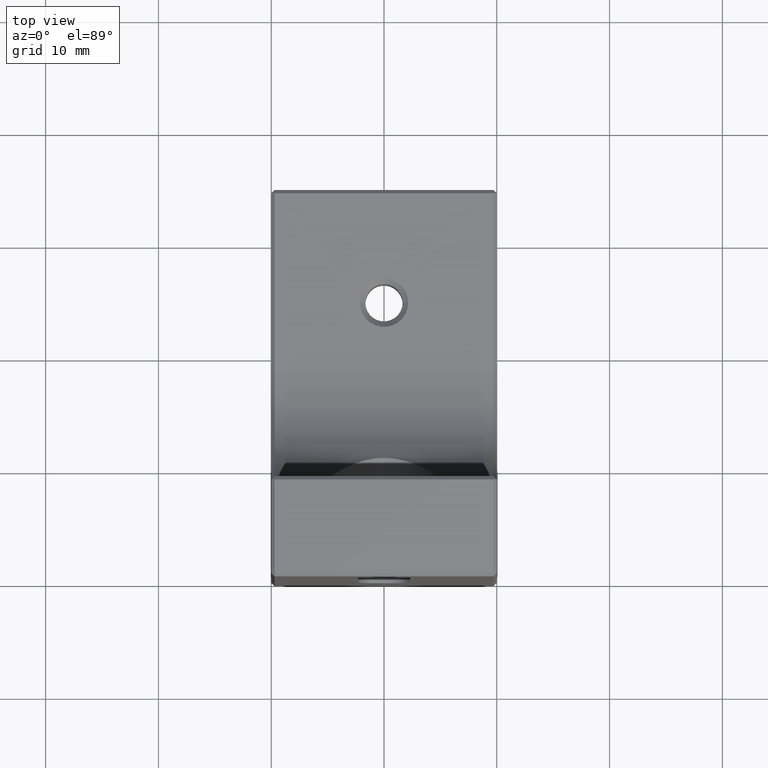
[diagram: clean part render]
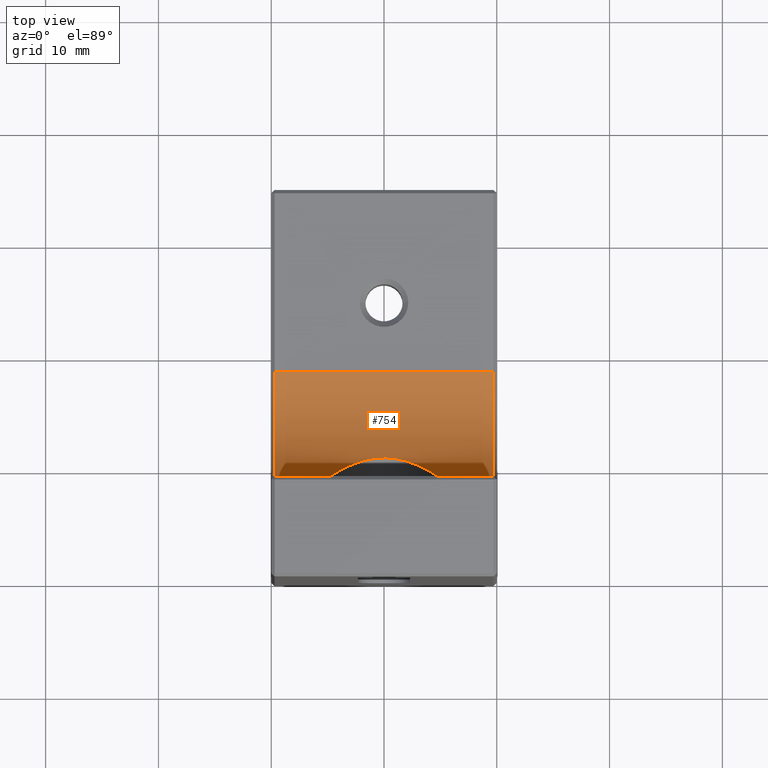
[diagram: same view with one face highlighted and labeled with its STEP entity id]
A machine part, top view. The second image highlights one B-rep face of the part: STEP entity #754.
In plain terms, the highlighted cylindrical surface (partial cylindrical patch) has radius 10 mm, axis along (1, 0, 0).
Its self-contained STEP definition (entity closure, byte-faithful):
#17 = VERTEX_POINT ( 'NONE', #801 ) ;
#18 = EDGE_CURVE ( 'NONE', #750, #1346, #1262, .T. ) ;
#43 = FACE_OUTER_BOUND ( 'NONE', #1122, .T. ) ;
#48 = CARTESIAN_POINT ( 'NONE',  ( 3.228630338804974631, 10.39436080026783138, 13.63642823959989414 ) ) ;
#56 = CIRCLE ( 'NONE', #610, 9.999999999999998224 ) ;
#66 = CARTESIAN_POINT ( 'NONE',  ( 3.484760413293132686, 10.26509043323107306, 13.84914244447565146 ) ) ;
#129 = AXIS2_PLACEMENT_3D ( 'NONE', #890, #1357, #1351 ) ;
#138 = VERTEX_POINT ( 'NONE', #928 ) ;
#151 = CYLINDRICAL_SURFACE ( 'NONE', #129, 10.00000000000000000 ) ;
#168 = CARTESIAN_POINT ( 'NONE',  ( 3.955790791953293528, 10.00524997531984894, 14.32220060826958985 ) ) ;
#174 = CARTESIAN_POINT ( 'NONE',  ( 4.904088555837988750, 9.356634183246512748, 15.90803365237660927 ) ) ;
#182 = CARTESIAN_POINT ( 'NONE',  ( 5.250000000000000000, 8.961795936890810665, 17.78999999999999204 ) ) ;
#184 = CIRCLE ( 'NONE', #1397, 10.00000000000000000 ) ;
#197 = CARTESIAN_POINT ( 'NONE',  ( -1.416382831365101680, 11.02876977221859711, 12.73168456483738176 ) ) ;
#245 = EDGE_CURVE ( 'NONE', #138, #1346, #1141, .T. ) ;
#254 = ORIENTED_EDGE ( 'NONE', *, *, #732, .F. ) ;
#268 = ORIENTED_EDGE ( 'NONE', *, *, #245, .T. ) ;
#273 = ORIENTED_EDGE ( 'NONE', *, *, #1563, .F. ) ;
#290 = ORIENTED_EDGE ( 'NONE', *, *, #18, .F. ) ;
#294 = CARTESIAN_POINT ( 'NONE',  ( 4.704280620743318764, 9.513891222336273046, 15.43420471397640092 ) ) ;
#302 = CARTESIAN_POINT ( 'NONE',  ( -0.3701230410575035434, 11.18252380871231821, 12.54071056947391760 ) ) ;
#312 = CARTESIAN_POINT ( 'NONE',  ( -5.249999999999999112, 8.961795936890810665, 17.78999999999999204 ) ) ;
#322 = CARTESIAN_POINT ( 'NONE',  ( -5.249999999999999112, 9.001864487370539791, 17.43125276470222573 ) ) ;
#333 = DIRECTION ( 'NONE',  ( 1.000000000000000000, -0.000000000000000000, -0.000000000000000000 ) ) ;
#387 = LINE ( 'NONE', #1491, #1243 ) ;
#403 = CARTESIAN_POINT ( 'NONE',  ( 4.963957897736887226, 9.306684020464338403, 16.07196775332707261 ) ) ;
#404 = DIRECTION ( 'NONE',  ( 1.000000000000000000, -0.000000000000000000, -0.000000000000000000 ) ) ;
#412 = CARTESIAN_POINT ( 'NONE',  ( 4.170618770675712739, 9.874384307652682935, 14.58372065089522174 ) ) ;
#428 = CARTESIAN_POINT ( 'NONE',  ( 5.109402245554638178, 9.173499938054625602, 16.57072114447057842 ) ) ;
#453 = EDGE_CURVE ( 'NONE', #1568, #1066, #184, .T. ) ;
#477 = DIRECTION ( 'NONE',  ( 0.000000000000000000, 0.000000000000000000, -1.000000000000000000 ) ) ;
#520 = CARTESIAN_POINT ( 'NONE',  ( -3.487282149246071494, 10.26373266854764310, 13.85155291283136414 ) ) ;
#528 = CARTESIAN_POINT ( 'NONE',  ( -10.00000000000000000, 8.899999999999996803, 18.89999999999999503 ) ) ;
#580 = ORIENTED_EDGE ( 'NONE', *, *, #1088, .T. ) ;
#610 = AXIS2_PLACEMENT_3D ( 'NONE', #1169, #1417, #828 ) ;
#626 = CARTESIAN_POINT ( 'NONE',  ( -5.249999999999999112, 8.961795936890810665, 17.78999999999999204 ) ) ;
#643 = CARTESIAN_POINT ( 'NONE',  ( 0.7054921211937199566, 11.14656144969701757, 12.58456433525686968 ) ) ;
#648 = CARTESIAN_POINT ( 'NONE',  ( -5.074810364845963484, 9.211029933203803921, 16.40089693469758814 ) ) ;
#649 = CARTESIAN_POINT ( 'NONE',  ( -5.249999999999999112, 8.900000000000000355, 18.89999999999999503 ) ) ;
#650 = CARTESIAN_POINT ( 'NONE',  ( -10.00000000000000000, 8.899999999999996803, 18.89999999999999503 ) ) ;
#656 = CARTESIAN_POINT ( 'NONE',  ( 0.1697313144757018610, 11.18338994951034415, 12.53965963687828555 ) ) ;
#666 = CARTESIAN_POINT ( 'NONE',  ( 0.3507640641892922906, 11.17591410506881644, 12.54869823763985437 ) ) ;
#673 = CARTESIAN_POINT ( 'NONE',  ( 1.399002937324035356, 11.03962430346590295, 12.71754716390307038 ) ) ;
#674 = ORIENTED_EDGE ( 'NONE', *, *, #453, .T. ) ;
#680 = AXIS2_PLACEMENT_3D ( 'NONE', #1569, #1435, #477 ) ;
#702 = VERTEX_POINT ( 'NONE', #1083 ) ;
#732 = EDGE_CURVE ( 'NONE', #138, #1066, #387, .T. ) ;
#750 = VERTEX_POINT ( 'NONE', #649 ) ;
#751 = DIRECTION ( 'NONE',  ( -1.000000000000000000, 0.000000000000000000, 0.000000000000000000 ) ) ;
#754 = ADVANCED_FACE ( 'NONE', ( #43 ), #151, .F. ) ;
#761 = VERTEX_POINT ( 'NONE', #626 ) ;
#775 = CARTESIAN_POINT ( 'NONE',  ( -4.544542442879876631, 9.628808358884523244, 15.13990966254448622 ) ) ;
#784 = CARTESIAN_POINT ( 'NONE',  ( -4.705167870490697624, 9.513212225248484089, 15.43615944277124896 ) ) ;
#792 = CARTESIAN_POINT ( 'NONE',  ( -4.970497689936911989, 9.304348115874208958, 16.06566744138935476 ) ) ;
#795 = CARTESIAN_POINT ( 'NONE',  ( 9.699999999999999289, 18.89999999999999858, 18.89999999999999503 ) ) ;
#800 = CARTESIAN_POINT ( 'NONE',  ( 2.370155630930351975, 10.75719919098064814, 13.09287124451733497 ) ) ;
#801 = CARTESIAN_POINT ( 'NONE',  ( 5.250000000000000000, 8.900000000000000355, 18.89999999999999503 ) ) ;
#828 = DIRECTION ( 'NONE',  ( 1.734723475976807341E-16, 3.469446951953614978E-15, 1.000000000000000000 ) ) ;
#839 = VECTOR ( 'NONE', #1155, 1000.000000000000000 ) ;
#889 = CARTESIAN_POINT ( 'NONE',  ( 5.066420747847504735, 9.215257126453705538, 16.40295507755056548 ) ) ;
#890 = CARTESIAN_POINT ( 'NONE',  ( 10.00000000000000000, 18.89999999999999858, 18.89999999999999503 ) ) ;
#923 = CARTESIAN_POINT ( 'NONE',  ( 4.543660556338230627, 9.629370886724037959, 15.13869146578816505 ) ) ;
#928 = CARTESIAN_POINT ( 'NONE',  ( -9.699999999999999289, 18.90000000000000213, 8.899999999999996803 ) ) ;
#941 = DIRECTION ( 'NONE',  ( 0.000000000000000000, 0.000000000000000000, -1.000000000000000000 ) ) ;
#952 = VECTOR ( 'NONE', #751, 1000.000000000000000 ) ;
#954 = EDGE_CURVE ( 'NONE', #761, #702, #1546, .T. ) ;
#979 = AXIS2_PLACEMENT_3D ( 'NONE', #1564, #1044, #1407 ) ;
#1005 = ORIENTED_EDGE ( 'NONE', *, *, #1150, .T. ) ;
#1006 = CARTESIAN_POINT ( 'NONE',  ( -5.213645496509752952, 9.060453447090528911, 17.08203940653157815 ) ) ;
#1012 = CARTESIAN_POINT ( 'NONE',  ( -3.230492194480680368, 10.39347252665368870, 13.63784998838714024 ) ) ;
#1021 = CARTESIAN_POINT ( 'NONE',  ( -3.955197591953591552, 10.00554373961099230, 14.32172748252362027 ) ) ;
#1036 = CARTESIAN_POINT ( 'NONE',  ( 5.213474148573832068, 9.060664536792618406, 17.08097514864993016 ) ) ;
#1044 = DIRECTION ( 'NONE',  ( -1.000000000000000000, -0.000000000000000000, 1.365923996832131856E-16 ) ) ;
#1066 = VERTEX_POINT ( 'NONE', #1425 ) ;
#1083 = CARTESIAN_POINT ( 'NONE',  ( 5.250000000000000000, 8.961795936890810665, 17.78999999999999204 ) ) ;
#1088 = EDGE_CURVE ( 'NONE', #750, #761, #56, .T. ) ;
#1122 = EDGE_LOOP ( 'NONE', ( #254, #268, #290, #580, #1570, #1005, #273, #674 ) ) ;
#1134 = LINE ( 'NONE', #528, #952 ) ;
#1136 = CARTESIAN_POINT ( 'NONE',  ( 2.670716258636052665, 10.64086166979518211, 13.25750765038680079 ) ) ;
#1141 = CIRCLE ( 'NONE', #680, 10.00000000000000000 ) ;
#1150 = EDGE_CURVE ( 'NONE', #702, #17, #1318, .T. ) ;
#1154 = CARTESIAN_POINT ( 'NONE',  ( -1.747763697830504892, 10.94781152421939296, 12.83641368066164645 ) ) ;
#1155 = DIRECTION ( 'NONE',  ( -1.000000000000000000, 0.000000000000000000, 0.000000000000000000 ) ) ;
#1169 = CARTESIAN_POINT ( 'NONE',  ( -5.249999999999999112, 18.89999999999999858, 18.89999999999999503 ) ) ;
#1186 = CARTESIAN_POINT ( 'NONE',  ( -9.699999999999992184, 8.899999999999996803, 18.89999999999999503 ) ) ;
#1243 = VECTOR ( 'NONE', #404, 1000.000000000000000 ) ;
#1255 = CARTESIAN_POINT ( 'NONE',  ( 0.8805241126990009937, 11.12471349161460310, 12.61136127585415245 ) ) ;
#1261 = CARTESIAN_POINT ( 'NONE',  ( -2.672191038327463186, 10.64027534038258871, 13.25835299342284479 ) ) ;
#1262 = LINE ( 'NONE', #650, #839 ) ;
#1272 = CARTESIAN_POINT ( 'NONE',  ( -0.7234607948053241033, 11.15139232986732942, 12.57800133324279912 ) ) ;
#1279 = CARTESIAN_POINT ( 'NONE',  ( 9.699999999999999289, 8.899999999999996803, 18.89999999999999503 ) ) ;
#1318 = CIRCLE ( 'NONE', #979, 10.00000000000000000 ) ;
#1346 = VERTEX_POINT ( 'NONE', #1186 ) ;
#1351 = DIRECTION ( 'NONE',  ( 0.000000000000000000, 0.000000000000000000, -1.000000000000000000 ) ) ;
#1357 = DIRECTION ( 'NONE',  ( 1.000000000000000000, 0.000000000000000000, 0.000000000000000000 ) ) ;
#1374 = CARTESIAN_POINT ( 'NONE',  ( 1.737466988224166897, 10.95586340375538725, 12.82392864275549549 ) ) ;
#1397 = AXIS2_PLACEMENT_3D ( 'NONE', #795, #333, #941 ) ;
#1407 = DIRECTION ( 'NONE',  ( -1.734723475976807094E-16, -2.775557561562891351E-15, -1.000000000000000000 ) ) ;
#1417 = DIRECTION ( 'NONE',  ( 1.000000000000000000, -0.000000000000000000, -1.365923996832131856E-16 ) ) ;
#1425 = CARTESIAN_POINT ( 'NONE',  ( 9.699999999999999289, 18.90000000000000213, 8.899999999999996803 ) ) ;
#1435 = DIRECTION ( 'NONE',  ( -1.000000000000000000, -0.000000000000000000, -0.000000000000000000 ) ) ;
#1490 = CARTESIAN_POINT ( 'NONE',  ( -1.244356091499859707, 11.06451779612827302, 12.68651743183911229 ) ) ;
#1491 = CARTESIAN_POINT ( 'NONE',  ( 10.00000000000000000, 18.90000000000000213, 8.899999999999996803 ) ) ;
#1498 = CARTESIAN_POINT ( 'NONE',  ( -2.377305028365934714, 10.75444678515558472, 13.09676243967636111 ) ) ;
#1508 = CARTESIAN_POINT ( 'NONE',  ( -4.168825451724384124, 9.875545422714104404, 14.58114675236359936 ) ) ;
#1516 = CARTESIAN_POINT ( 'NONE',  ( -1.908488348810798874, 10.90240334389523547, 12.89622214221618890 ) ) ;
#1525 = CARTESIAN_POINT ( 'NONE',  ( 5.250000000000000000, 9.001965022856888154, 17.43035263661311518 ) ) ;
#1546 = B_SPLINE_CURVE_WITH_KNOTS ( 'NONE', 3,
 ( #312, #322, #1006, #648, #792, #784, #775, #1508, #1021, #520, #1012, #1261, #1498, #1516, #1154, #197, #1490, #1272, #302, #656, #666, #643, #1255, #673, #1374, #800, #1136, #48, #66, #168, #412, #923, #294, #174, #403, #889, #428, #1036, #1525, #182 ),
 .UNSPECIFIED., .F., .F.,
 ( 4, 2, 2, 2, 2, 2, 2, 2, 2, 2, 2, 2, 2, 2, 2, 2, 2, 2, 2, 4 ),
 ( 0.000000000000000000, 0.001065821007435914297, 0.002131642014871828594, 0.003197463022307733566, 0.004263284029743638973, 0.005329105037179543078, 0.006394926044615448918, 0.006927836548333400971, 0.007460747052051353023, 0.008526568059487258863, 0.009059478563205212651, 0.009592389066923166438, 0.01065821007435907228, 0.01172403108179497812, 0.01278985208923088569, 0.01385567309666679327, 0.01492149410410269737, 0.01545440460782064943, 0.01598731511153859974, 0.01705313611897451426 ),
 .UNSPECIFIED. ) ;
#1563 = EDGE_CURVE ( 'NONE', #1568, #17, #1134, .T. ) ;
#1564 = CARTESIAN_POINT ( 'NONE',  ( 5.250000000000000000, 18.89999999999999858, 18.89999999999999503 ) ) ;
#1568 = VERTEX_POINT ( 'NONE', #1279 ) ;
#1569 = CARTESIAN_POINT ( 'NONE',  ( -9.699999999999999289, 18.89999999999999858, 18.89999999999999503 ) ) ;
#1570 = ORIENTED_EDGE ( 'NONE', *, *, #954, .T. ) ;